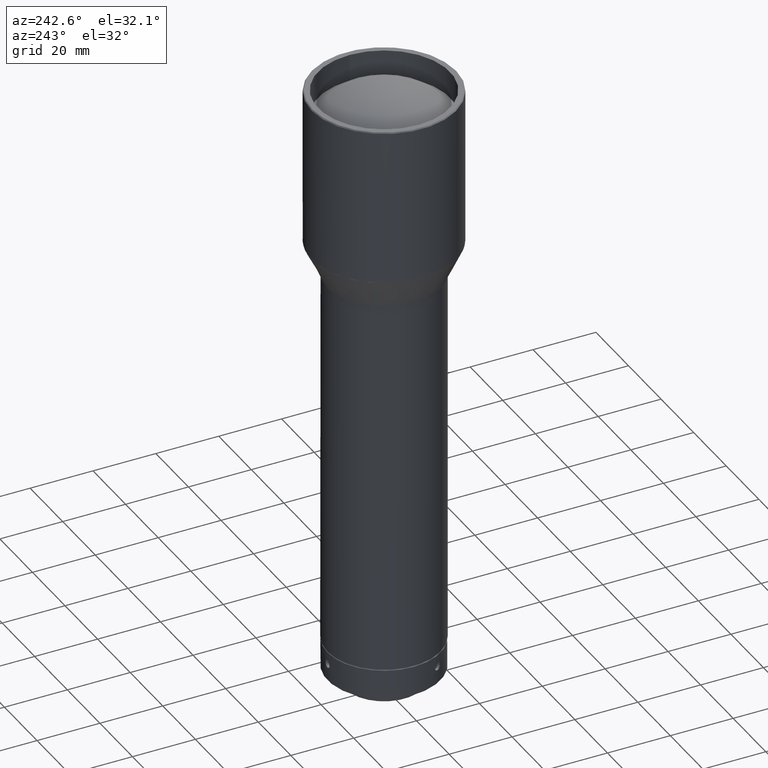
[diagram: clean part render]
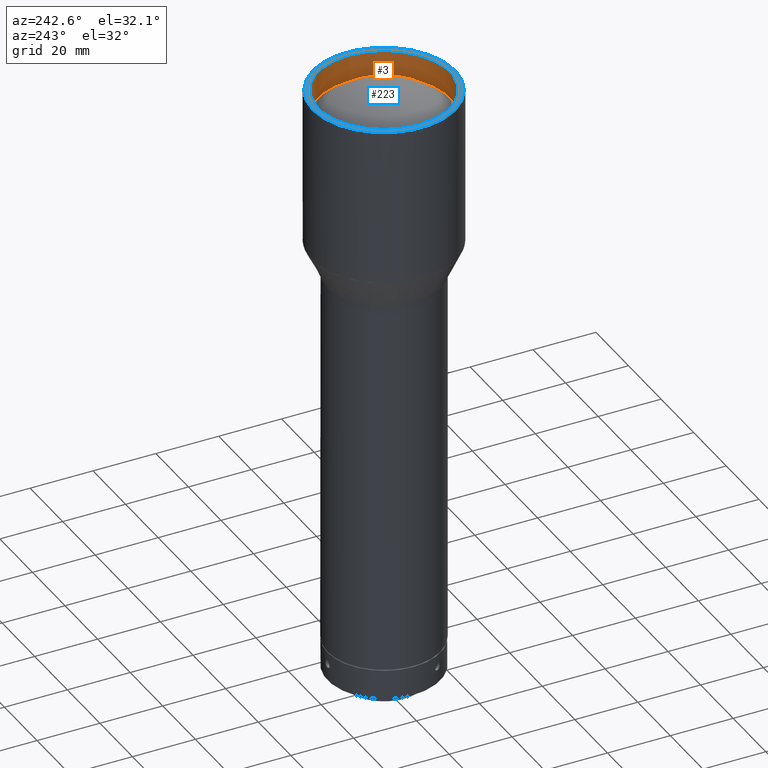
[diagram: same view with the hole feature highlighted: cylindrical wall and planar end face, labeled with their STEP entity ids]
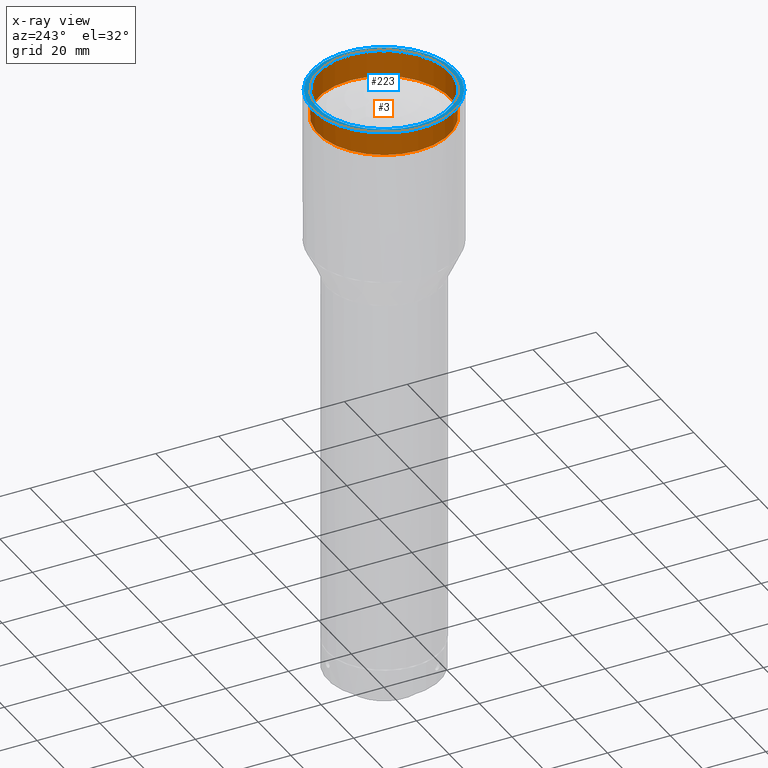
[diagram: x-ray of the same camera — body ghosted, the hole faces saturated]
A machine part, auxiliary view. The highlighted faces form one hole feature of diameter 42 mm: the cylindrical wall (entity #3, orange) and its adjacent planar end face (entity #223, blue) — they share a circular edge in the B-rep.
The next image is the same camera in x-ray (body ghosted, the hole faces saturated) — the bore reads through the body.
Wall:
#3 = ADVANCED_FACE ( 'NONE', ( #408, #394 ), #107, .F. ) ;
#5 = DIRECTION ( 'NONE',  ( 0.000000000000000000, 0.000000000000000000, -1.000000000000000000 ) ) ;
#31 = CIRCLE ( 'NONE', #225, 21.00000000000000000 ) ;
#67 = CARTESIAN_POINT ( 'NONE',  ( -7.285838599102589797E-14, -5.290196298571356543E-14, -610.0000000000000000 ) ) ;
#107 = CYLINDRICAL_SURFACE ( 'NONE', #407, 21.00000000000000000 ) ;
#128 = CARTESIAN_POINT ( 'NONE',  ( -7.285838599102589797E-14, -5.290196298571356543E-14, -618.5805314758425766 ) ) ;
#135 = ORIENTED_EDGE ( 'NONE', *, *, #354, .T. ) ;
#140 = EDGE_LOOP ( 'NONE', ( #135 ) ) ;
#225 = AXIS2_PLACEMENT_3D ( 'NONE', #67, #432, #798 ) ;
#253 = CARTESIAN_POINT ( 'NONE',  ( 20.99999999999992895, -5.290196298571356543E-14, -610.0000000000000000 ) ) ;
#336 = EDGE_LOOP ( 'NONE', ( #569 ) ) ;
#346 = DIRECTION ( 'NONE',  ( 1.000000000000000000, 0.000000000000000000, 0.000000000000000000 ) ) ;
#350 = CARTESIAN_POINT ( 'NONE',  ( -7.285838599102589797E-14, -5.290196298571356543E-14, -619.0000000000000000 ) ) ;
#354 = EDGE_CURVE ( 'NONE', #452, #452, #726, .T. ) ;
#368 = AXIS2_PLACEMENT_3D ( 'NONE', #128, #5, #803 ) ;
#374 = EDGE_CURVE ( 'NONE', #581, #581, #31, .T. ) ;
#394 = FACE_OUTER_BOUND ( 'NONE', #336, .T. ) ;
#398 = DIRECTION ( 'NONE',  ( -0.000000000000000000, -0.000000000000000000, 1.000000000000000000 ) ) ;
#407 = AXIS2_PLACEMENT_3D ( 'NONE', #350, #398, #346 ) ;
#408 = FACE_OUTER_BOUND ( 'NONE', #140, .T. ) ;
#432 = DIRECTION ( 'NONE',  ( 0.000000000000000000, 0.000000000000000000, 1.000000000000000000 ) ) ;
#448 = CARTESIAN_POINT ( 'NONE',  ( -21.00000000000007461, -5.290196298571356543E-14, -618.5805314758425766 ) ) ;
#452 = VERTEX_POINT ( 'NONE', #448 ) ;
#569 = ORIENTED_EDGE ( 'NONE', *, *, #374, .T. ) ;
#581 = VERTEX_POINT ( 'NONE', #253 ) ;
#726 = CIRCLE ( 'NONE', #368, 21.00000000000000000 ) ;
#798 = DIRECTION ( 'NONE',  ( 1.000000000000000000, 0.000000000000000000, 0.000000000000000000 ) ) ;
#803 = DIRECTION ( 'NONE',  ( -1.000000000000000000, 0.000000000000000000, 0.000000000000000000 ) ) ;
End face:
#31 = CIRCLE ( 'NONE', #225, 21.00000000000000000 ) ;
#59 = FACE_OUTER_BOUND ( 'NONE', #403, .T. ) ;
#67 = CARTESIAN_POINT ( 'NONE',  ( -7.285838599102589797E-14, -5.290196298571356543E-14, -610.0000000000000000 ) ) ;
#76 = ORIENTED_EDGE ( 'NONE', *, *, #374, .F. ) ;
#112 = EDGE_CURVE ( 'NONE', #133, #133, #696, .T. ) ;
#115 = DIRECTION ( 'NONE',  ( -5.551115123125790098E-17, 3.053113317719188375E-16, -1.000000000000000000 ) ) ;
#133 = VERTEX_POINT ( 'NONE', #214 ) ;
#180 = DIRECTION ( 'NONE',  ( 0.000000000000000000, 1.000000000000000000, 0.000000000000000000 ) ) ;
#214 = CARTESIAN_POINT ( 'NONE',  ( -7.285838599102589797E-14, 22.69999999999999574, -610.0000000000000000 ) ) ;
#223 = ADVANCED_FACE ( 'NONE', ( #241, #59 ), #415, .F. ) ;
#225 = AXIS2_PLACEMENT_3D ( 'NONE', #67, #432, #798 ) ;
#241 = FACE_BOUND ( 'NONE', #531, .T. ) ;
#253 = CARTESIAN_POINT ( 'NONE',  ( 20.99999999999992895, -5.290196298571356543E-14, -610.0000000000000000 ) ) ;
#254 = DIRECTION ( 'NONE',  ( -7.281398655528297692E-31, 2.413528314402513498E-15, -1.000000000000000000 ) ) ;
#311 = AXIS2_PLACEMENT_3D ( 'NONE', #423, #115, #488 ) ;
#355 = CARTESIAN_POINT ( 'NONE',  ( -7.285838599102589797E-14, -5.290196298571355281E-14, -610.0000000000000000 ) ) ;
#372 = ORIENTED_EDGE ( 'NONE', *, *, #112, .F. ) ;
#374 = EDGE_CURVE ( 'NONE', #581, #581, #31, .T. ) ;
#403 = EDGE_LOOP ( 'NONE', ( #372 ) ) ;
#415 = PLANE ( 'NONE',  #311 ) ;
#423 = CARTESIAN_POINT ( 'NONE',  ( -7.347882562997452106E-14, 21.74999999999997158, -610.0000000000000000 ) ) ;
#432 = DIRECTION ( 'NONE',  ( 0.000000000000000000, 0.000000000000000000, 1.000000000000000000 ) ) ;
#488 = DIRECTION ( 'NONE',  ( 0.000000000000000000, 1.000000000000000000, 3.053113317719188375E-16 ) ) ;
#508 = AXIS2_PLACEMENT_3D ( 'NONE', #355, #254, #180 ) ;
#531 = EDGE_LOOP ( 'NONE', ( #76 ) ) ;
#581 = VERTEX_POINT ( 'NONE', #253 ) ;
#696 = CIRCLE ( 'NONE', #508, 22.70000000000004547 ) ;
#798 = DIRECTION ( 'NONE',  ( 1.000000000000000000, 0.000000000000000000, 0.000000000000000000 ) ) ;